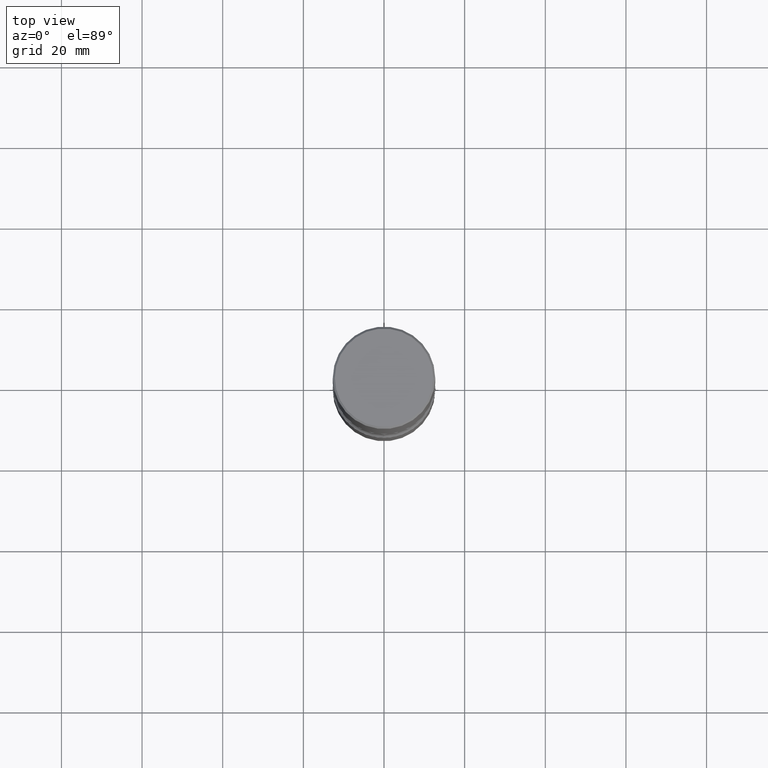
[diagram: clean part render]
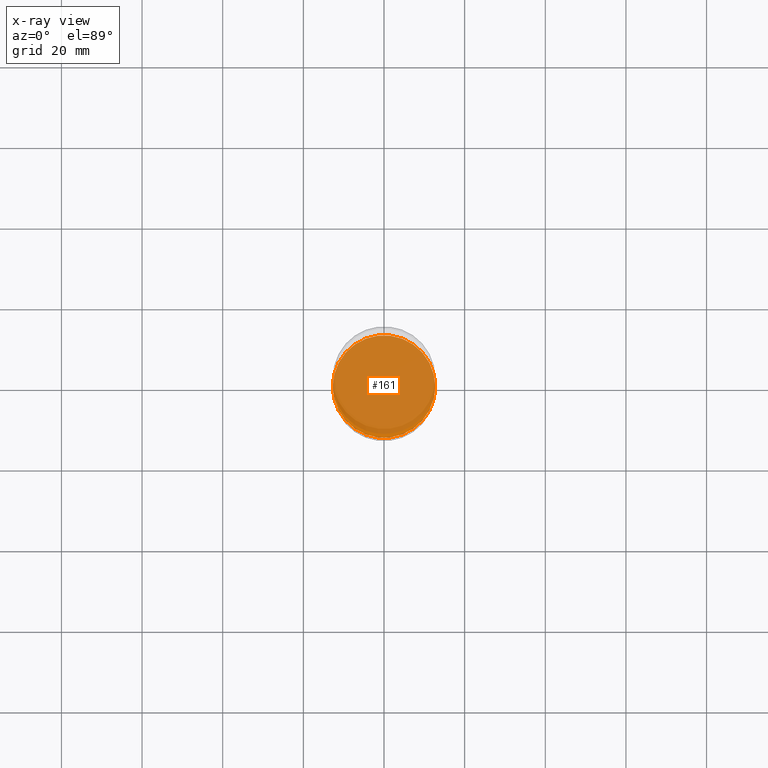
[diagram: x-ray — body ghosted, one internal face saturated and labeled with its STEP entity id]
A machine part, top view, then the same camera in x-ray: the body is ghosted and one INTERNAL B-rep face — a face not visible from any outside direction — is saturated and labeled: STEP entity #161.
In plain terms, the highlighted planar face has unit normal (0, -0, -1).
Its self-contained STEP definition (entity closure, byte-faithful):
#4 = EDGE_CURVE ( 'NONE', #26, #50, #514, .T. ) ;
#17 = DIRECTION ( 'NONE',  ( -2.445468806185136597E-29, 3.491481338843145583E-15, 1.000000000000000000 ) ) ;
#26 = VERTEX_POINT ( 'NONE', #177 ) ;
#29 = CIRCLE ( 'NONE', #460, 0.5000000000000002220 ) ;
#49 = CARTESIAN_POINT ( 'NONE',  ( 1.222734403092568074E-28, -1.745740669421572673E-14, -4.999999999999999112 ) ) ;
#50 = VERTEX_POINT ( 'NONE', #556 ) ;
#135 = FACE_OUTER_BOUND ( 'NONE', #535, .T. ) ;
#161 = ADVANCED_FACE ( 'NONE', ( #135 ), #419, .F. ) ;
#177 = CARTESIAN_POINT ( 'NONE',  ( 0.5000000000000002220, -2.094888803305886009E-14, -4.999999999999999112 ) ) ;
#184 = DIRECTION ( 'NONE',  ( 2.438088387897960049E-29, -3.491481338843145188E-15, -1.000000000000000000 ) ) ;
#190 = DIRECTION ( 'NONE',  ( 1.000000000000000000, -6.982962677686263555E-15, 0.000000000000000000 ) ) ;
#201 = AXIS2_PLACEMENT_3D ( 'NONE', #49, #184, #316 ) ;
#260 = ORIENTED_EDGE ( 'NONE', *, *, #304, .T. ) ;
#300 = ORIENTED_EDGE ( 'NONE', *, *, #4, .T. ) ;
#304 = EDGE_CURVE ( 'NONE', #50, #26, #29, .T. ) ;
#316 = DIRECTION ( 'NONE',  ( -1.000000000000000000, 6.982962677686265922E-15, -4.876176775795935793E-29 ) ) ;
#333 = AXIS2_PLACEMENT_3D ( 'NONE', #420, #456, #190 ) ;
#376 = DIRECTION ( 'NONE',  ( 1.000000000000000000, -6.982962677686263555E-15, 0.000000000000000000 ) ) ;
#419 = PLANE ( 'NONE',  #201 ) ;
#420 = CARTESIAN_POINT ( 'NONE',  ( 1.222734403092568074E-28, -1.745740669421572673E-14, -4.999999999999999112 ) ) ;
#422 = CARTESIAN_POINT ( 'NONE',  ( 1.222734403092568074E-28, -1.745740669421572673E-14, -4.999999999999999112 ) ) ;
#456 = DIRECTION ( 'NONE',  ( -2.445468806185136597E-29, 3.491481338843145583E-15, 1.000000000000000000 ) ) ;
#460 = AXIS2_PLACEMENT_3D ( 'NONE', #422, #17, #376 ) ;
#514 = CIRCLE ( 'NONE', #333, 0.5000000000000002220 ) ;
#535 = EDGE_LOOP ( 'NONE', ( #300, #260 ) ) ;
#556 = CARTESIAN_POINT ( 'NONE',  ( -0.5000000000000002220, -1.718668547392778188E-14, -4.999999999999999112 ) ) ;